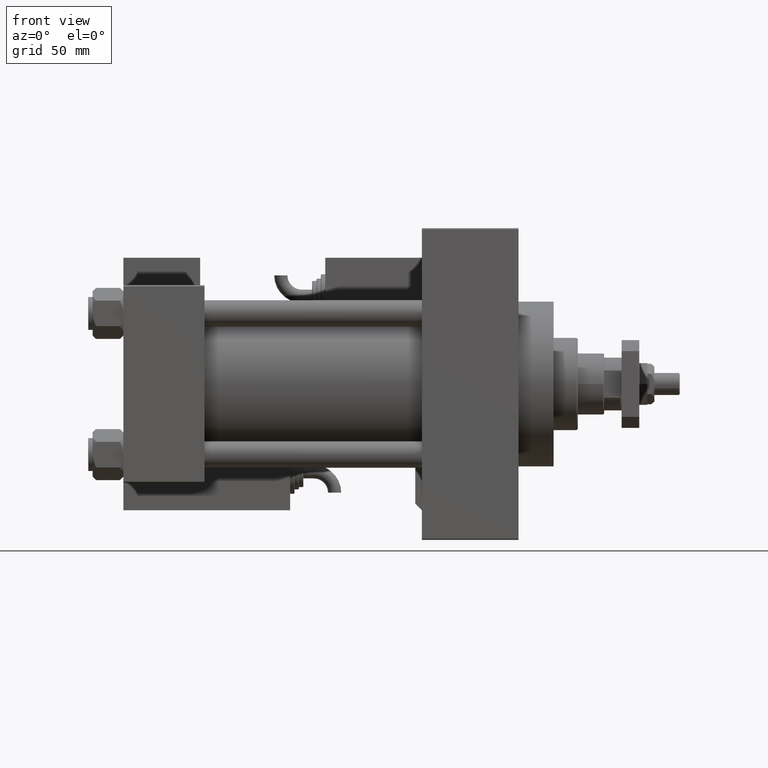
[diagram: clean part render]
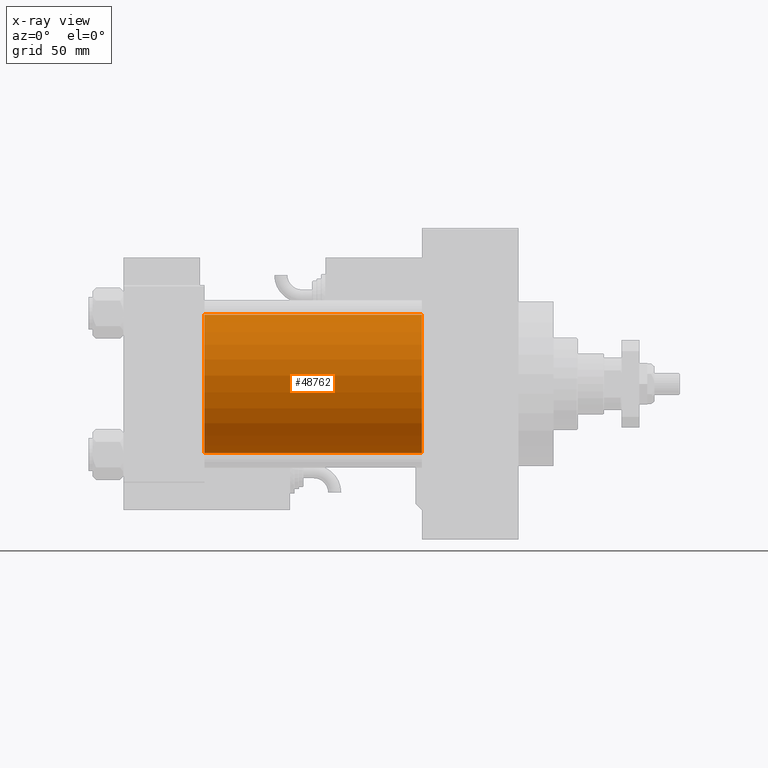
[diagram: x-ray — body ghosted, one internal face saturated and labeled with its STEP entity id]
A machine part, front view, then the same camera in x-ray: the body is ghosted and one INTERNAL B-rep face — a face not visible from any outside direction — is saturated and labeled: STEP entity #48762.
In plain terms, the highlighted cylindrical surface (partial cylindrical patch) has radius 31.5 mm, axis along (-1, -0, -0).
Its self-contained STEP definition (entity closure, byte-faithful):
#542 = VERTEX_POINT ( 'NONE', #18993 ) ;
#1270 = EDGE_CURVE ( 'NONE', #542, #21147, #7168, .T. ) ;
#2989 = CARTESIAN_POINT ( 'NONE',  ( 136.0000000000000000, -2.602085213965210642E-15, 31.50000000000000000 ) ) ;
#3315 = EDGE_CURVE ( 'NONE', #542, #49738, #31409, .T. ) ;
#7168 = LINE ( 'NONE', #2989, #12685 ) ;
#7806 = CARTESIAN_POINT ( 'NONE',  ( 136.0000000000000000, 1.255552203348951850E-15, -31.50000000000000000 ) ) ;
#10488 = LINE ( 'NONE', #35520, #45327 ) ;
#12685 = VECTOR ( 'NONE', #45002, 1000.000000000000000 ) ;
#13652 = DIRECTION ( 'NONE',  ( 0.000000000000000000, 0.000000000000000000, -1.000000000000000000 ) ) ;
#18993 = CARTESIAN_POINT ( 'NONE',  ( 136.0000000000000000, -2.602085213965210642E-15, 31.50000000000000000 ) ) ;
#19383 = DIRECTION ( 'NONE',  ( -1.000000000000000000, -0.000000000000000000, -0.000000000000000000 ) ) ;
#20058 = EDGE_LOOP ( 'NONE', ( #50755, #54544, #52123, #30488 ) ) ;
#20851 = DIRECTION ( 'NONE',  ( 1.000000000000000000, 0.000000000000000000, 0.000000000000000000 ) ) ;
#21147 = VERTEX_POINT ( 'NONE', #54956 ) ;
#22533 = AXIS2_PLACEMENT_3D ( 'NONE', #30866, #51746, #13652 ) ;
#24285 = AXIS2_PLACEMENT_3D ( 'NONE', #54496, #20851, #33077 ) ;
#26216 = FACE_OUTER_BOUND ( 'NONE', #20058, .T. ) ;
#26770 = EDGE_CURVE ( 'NONE', #49738, #48893, #10488, .T. ) ;
#30488 = ORIENTED_EDGE ( 'NONE', *, *, #1270, .F. ) ;
#30866 = CARTESIAN_POINT ( 'NONE',  ( 136.0000000000000000, -2.602085213965210642E-15, 0.000000000000000000 ) ) ;
#31409 = CIRCLE ( 'NONE', #22533, 31.50000000000000000 ) ;
#32135 = CIRCLE ( 'NONE', #24285, 31.50000000000000000 ) ;
#32995 = EDGE_CURVE ( 'NONE', #21147, #48893, #32135, .T. ) ;
#33077 = DIRECTION ( 'NONE',  ( 0.000000000000000000, 0.000000000000000000, -1.000000000000000000 ) ) ;
#33992 = DIRECTION ( 'NONE',  ( 0.000000000000000000, 0.000000000000000000, 1.000000000000000000 ) ) ;
#35520 = CARTESIAN_POINT ( 'NONE',  ( 136.0000000000000000, 1.255552203348951850E-15, -31.50000000000000000 ) ) ;
#43167 = DIRECTION ( 'NONE',  ( -1.000000000000000000, -0.000000000000000000, -0.000000000000000000 ) ) ;
#44796 = CARTESIAN_POINT ( 'NONE',  ( 37.00000000000000000, 1.255552203348951850E-15, -31.50000000000000000 ) ) ;
#45002 = DIRECTION ( 'NONE',  ( -1.000000000000000000, -0.000000000000000000, -0.000000000000000000 ) ) ;
#45327 = VECTOR ( 'NONE', #19383, 1000.000000000000000 ) ;
#46797 = CYLINDRICAL_SURFACE ( 'NONE', #51804, 31.50000000000000000 ) ;
#48762 = ADVANCED_FACE ( 'NONE', ( #26216 ), #46797, .F. ) ;
#48893 = VERTEX_POINT ( 'NONE', #44796 ) ;
#49738 = VERTEX_POINT ( 'NONE', #7806 ) ;
#50755 = ORIENTED_EDGE ( 'NONE', *, *, #3315, .T. ) ;
#51238 = CARTESIAN_POINT ( 'NONE',  ( 136.0000000000000000, -2.602085213965210642E-15, 0.000000000000000000 ) ) ;
#51746 = DIRECTION ( 'NONE',  ( 1.000000000000000000, 0.000000000000000000, 0.000000000000000000 ) ) ;
#51804 = AXIS2_PLACEMENT_3D ( 'NONE', #51238, #43167, #33992 ) ;
#52123 = ORIENTED_EDGE ( 'NONE', *, *, #32995, .F. ) ;
#54496 = CARTESIAN_POINT ( 'NONE',  ( 37.00000000000000000, -2.602085213965210642E-15, 0.000000000000000000 ) ) ;
#54544 = ORIENTED_EDGE ( 'NONE', *, *, #26770, .T. ) ;
#54956 = CARTESIAN_POINT ( 'NONE',  ( 37.00000000000000000, -2.602085213965210642E-15, 31.50000000000000000 ) ) ;